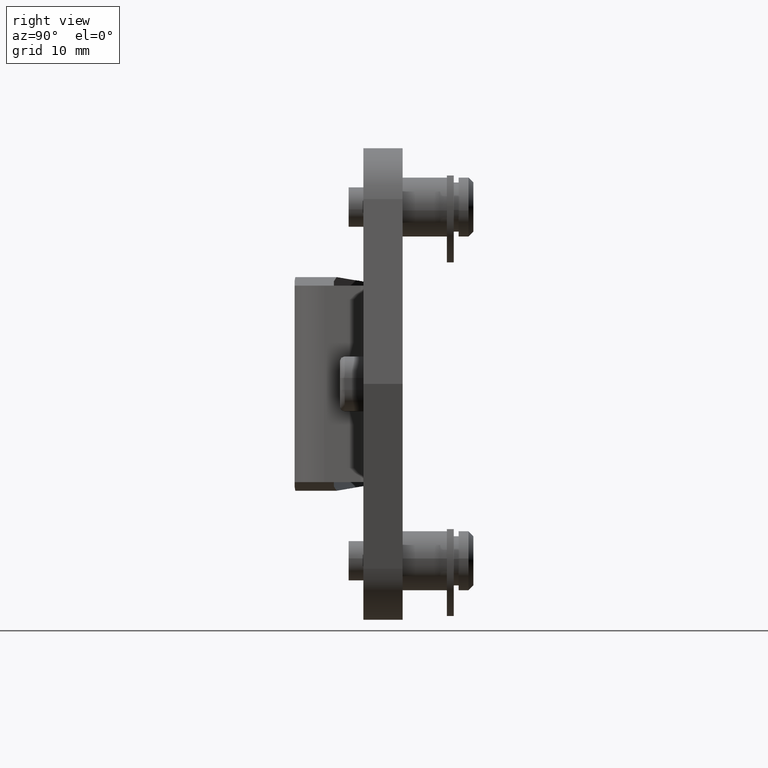
[diagram: clean part render]
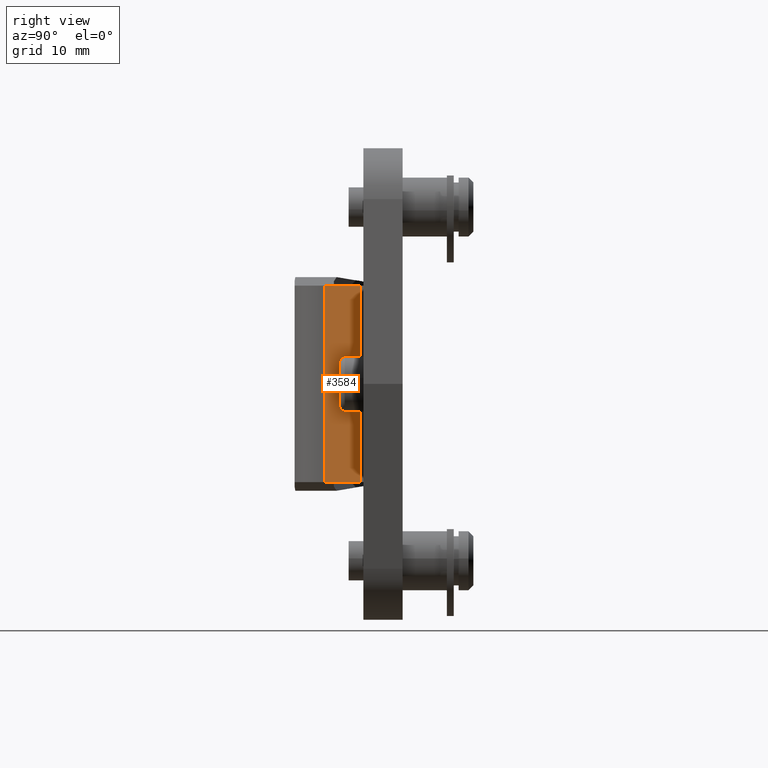
[diagram: same view with one face highlighted and labeled with its STEP entity id]
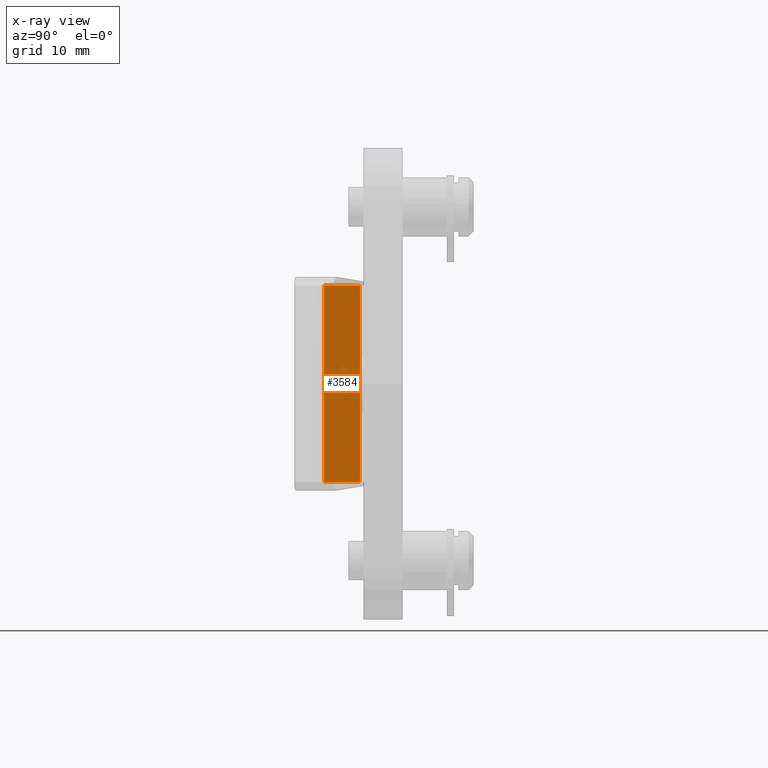
[diagram: x-ray of the same camera — body ghosted, the highlighted face saturated]
A machine part, right view. The second image highlights one B-rep face of the part: STEP entity #3584.
The next image is the same camera in x-ray: the body ghosted, the highlighted face saturated — about 6% of this face is hidden behind the body in this view.
In plain terms, the highlighted face is a freeform B-spline surface patch.
Its self-contained STEP definition (entity closure, byte-faithful):
#2401=CARTESIAN_POINT('',(-15.753579545517150,-0.989263948691255,-10.000000474974440));
#2402=VERTEX_POINT('',#2401);
#2418=CARTESIAN_POINT('',(-15.753579545517200,-0.989263948691366,10.000000474974501));
#2419=VERTEX_POINT('',#2418);
#2420=CARTESIAN_POINT('',(-15.753579545517200,-0.989263948691366,10.000000474974501));
#2421=CARTESIAN_POINT('',(-15.753579545517150,-0.989263948691255,-10.000000474974440));
#2422=QUASI_UNIFORM_CURVE('',1,(#2420,#2421),.UNSPECIFIED.,.F.,.U.);
#2423=EDGE_CURVE('',#2419,#2402,#2422,.T.);
#2586=CARTESIAN_POINT('',(-14.471825265458360,2.665473893458390,-10.000000474974440));
#2587=VERTEX_POINT('',#2586);
#2608=CARTESIAN_POINT('',(-14.471825265458360,2.665473893458390,10.000000474974501));
#2609=VERTEX_POINT('',#2608);
#2623=CARTESIAN_POINT('',(-14.471825265458360,2.665473893458390,-10.000000474974440));
#2624=CARTESIAN_POINT('',(-14.471825265458360,2.665473893458390,10.000000474974501));
#2625=QUASI_UNIFORM_CURVE('',1,(#2623,#2624),.UNSPECIFIED.,.F.,.U.);
#2626=EDGE_CURVE('',#2587,#2609,#2625,.T.);
#3565=CARTESIAN_POINT('',(-15.817603128645910,-1.171817980841688,-10.999000036715060));
#3566=CARTESIAN_POINT('',(-14.407801705249090,2.848027860256866,-10.999000036715060));
#3567=CARTESIAN_POINT('',(-15.817603128645910,-1.171817980841688,10.998999500273291));
#3568=CARTESIAN_POINT('',(-14.407801705249090,2.848027860256866,10.998999500273291));
#3569=B_SPLINE_SURFACE_WITH_KNOTS('',1,1,((#3565,#3567),(#3566,#3568)),.UNSPECIFIED.,.F.,.F.,.U.,(2,2),(2,2),(0.0,4.259894439960810),(0.0,21.997999536988338),.UNSPECIFIED.);
#3570=CARTESIAN_POINT('',(-14.471825265458360,2.665473893458390,10.000000474974501));
#3571=CARTESIAN_POINT('',(-15.753579545517200,-0.989263948691366,10.000000474974501));
#3572=QUASI_UNIFORM_CURVE('',1,(#3570,#3571),.UNSPECIFIED.,.F.,.U.);
#3573=EDGE_CURVE('',#2609,#2419,#3572,.T.);
#3574=ORIENTED_EDGE('',*,*,#3573,.T.);
#3575=ORIENTED_EDGE('',*,*,#2423,.T.);
#3576=CARTESIAN_POINT('',(-15.753579545517150,-0.989263948691255,-10.000000474974440));
#3577=CARTESIAN_POINT('',(-14.471825265458360,2.665473893458390,-10.000000474974440));
#3578=QUASI_UNIFORM_CURVE('',1,(#3576,#3577),.UNSPECIFIED.,.F.,.U.);
#3579=EDGE_CURVE('',#2402,#2587,#3578,.T.);
#3580=ORIENTED_EDGE('',*,*,#3579,.T.);
#3581=ORIENTED_EDGE('',*,*,#2626,.T.);
#3582=EDGE_LOOP('',(#3574,#3575,#3580,#3581));
#3583=FACE_OUTER_BOUND('',#3582,.T.);
#3584=ADVANCED_FACE('',(#3583),#3569,.T.);